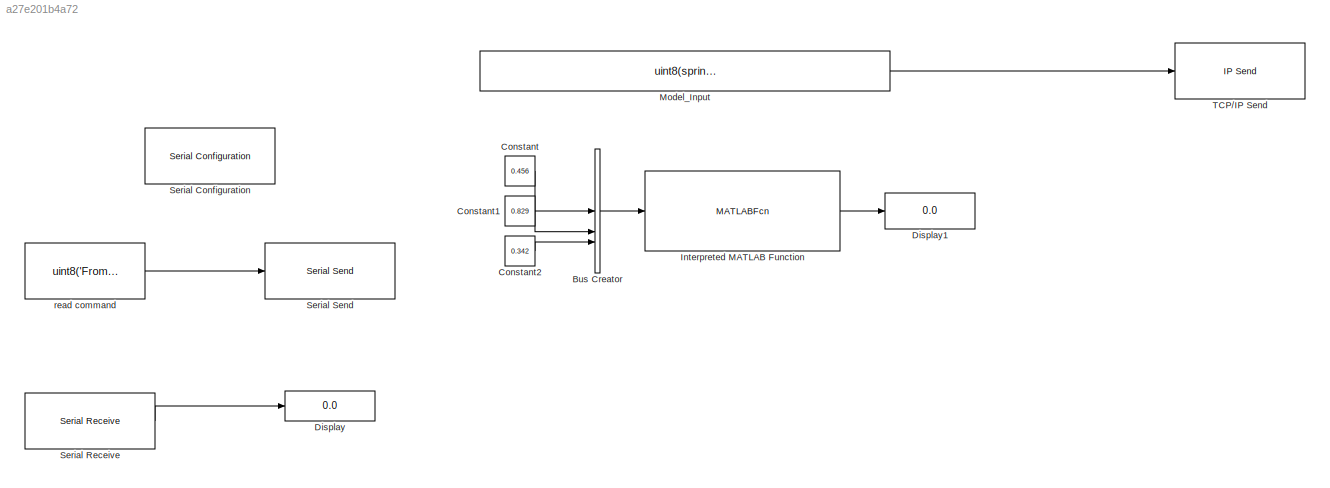
MODEL slx_a27e201b4a72
KIND model
CONFIG AbsTol = auto
CONFIG EnableMultiTasking = off
CONFIG FixedStep = auto
CONFIG MaxStep = auto
CONFIG MinStep = auto
CONFIG RelTol = 1e-3
CONFIG SampleTimeConstraint = Unconstrained
CONFIG SolverName = VariableStepAuto
CONFIG StartTime = 0.0
CONFIG StopTime = inf
WORKSPACE source: mxarray member
WORKSPACE b_soc: Simulink.Parameter (value not decoded)
WORKSPACE c_soc: Simulink.Parameter (value not decoded)
WORKSPACE p_dmd: Simulink.Parameter (value not decoded)
BLOCK [BusCreator] Bus Creator
  DisplayOption = bar
  InheritFromInputs = on
  Inputs = 3
BLOCK [Constant] Constant
  Value = 0.456
BLOCK [Constant] Constant1
  Value = 0.829
BLOCK [Constant] Constant2
  Value = 0.342
BLOCK [Display] Display
  Commented = on
  Decimation = 1
  Format = decimal (Stored Integer)
BLOCK [Display] Display1
  Decimation = 1
BLOCK [MATLABFcn] Interpreted MATLAB Function
  MATLABFcn = tcp_test_v2
BLOCK [Constant] Model_Input
  Commented = on
  Value = uint8(sprintf('%.3f,%.3f,%.3f', Pwr_Dmd, Cap_SOC, Bat_SOC))
BLOCK [Reference] Serial Configuration  REF=instrumentseriallib/Serial Configuration
  Commented = on
  LibrarySourceBlock = instrumentlib/Serial Configuration
  Priority = -200000
  SourceBlock = instrumentseriallib/Serial Configuration
  SourceType = system.SerialConfiguration
BLOCK [Reference] Serial Receive  REF=instrumentseriallib/Serial Receive
  Commented = on
  LibrarySourceBlock = instrumentlib/Serial Receive
  Priority = 1
  SourceBlock = instrumentseriallib/Serial Receive
  SourceType = system.SerialReceive
BLOCK [Reference] Serial Send  REF=instrumentseriallib/Serial Send
  Commented = on
  LibrarySourceBlock = instrumentlib/Serial Send
  Priority = 1
  SourceBlock = instrumentseriallib/Serial Send
  SourceType = system.SerialSend
BLOCK [Reference] TCP//IP Send  REF=instrumentlib/TCP//IP Send
  Commented = on
  SourceBlock = instrumentlib/TCP//IP Send
  SourceType = instrument.system.TCPIPSend
BLOCK [Constant] read command
  Commented = on
  Value = uint8('From Matlab');
LINE Bus Creator:1 -> Interpreted MATLAB Function:1
LINE Constant1:1 -> Bus Creator:2
LINE Constant2:1 -> Bus Creator:3
LINE Constant:1 -> Bus Creator:1
LINE Interpreted MATLAB Function:1 -> Display1:1
LINE Model_Input:1 -> TCP//IP Send:1
LINE Serial Receive:1 -> Display:1
LINE read command:1 -> Serial Send:1
